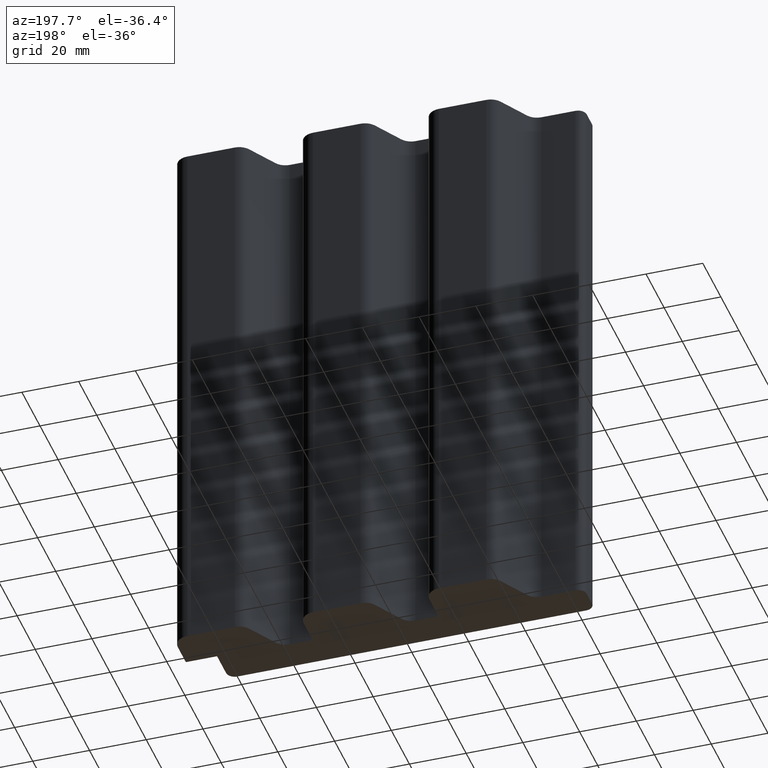
[diagram: clean part render]
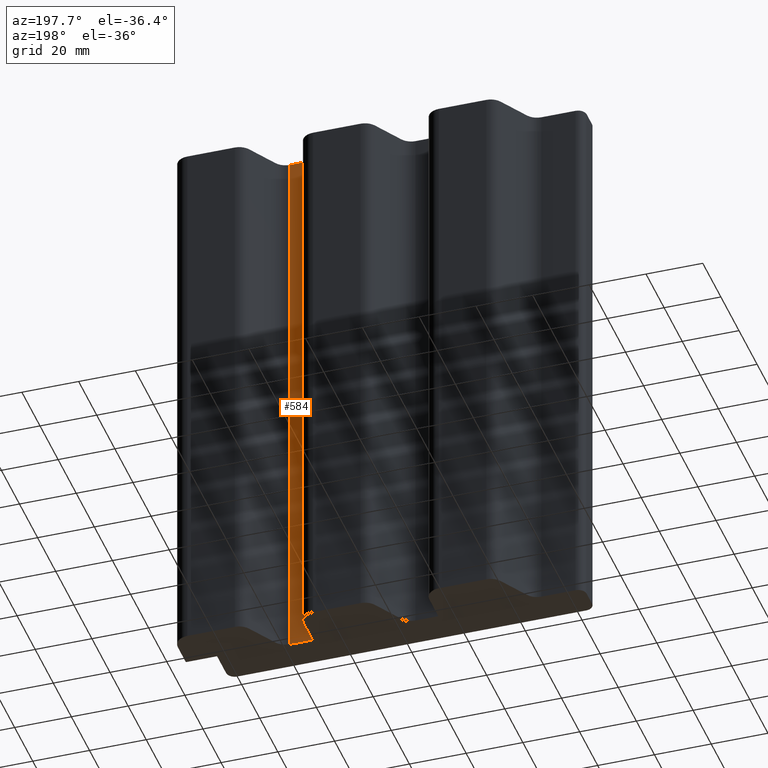
[diagram: same view with one face highlighted and labeled with its STEP entity id]
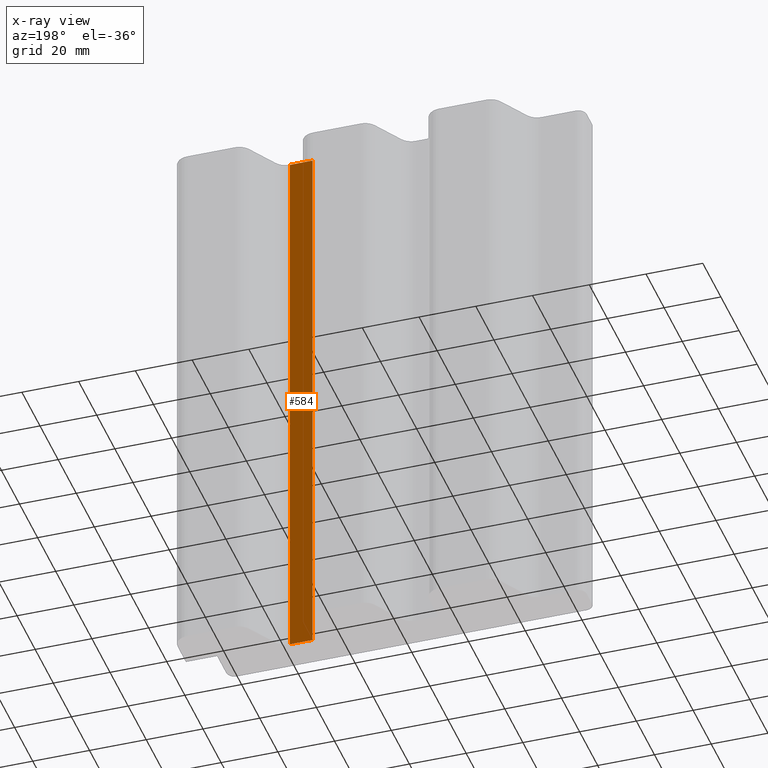
[diagram: x-ray of the same camera — body ghosted, the highlighted face saturated]
A machine part, auxiliary view. The second image highlights one B-rep face of the part: STEP entity #584.
The next image is the same camera in x-ray: the body ghosted, the highlighted face saturated — about 0% of this face is hidden behind the body in this view.
In plain terms, the highlighted planar face has unit normal (0, 1, 0).
Its self-contained STEP definition (entity closure, byte-faithful):
#30=PLANE('',#652);
#60=FACE_OUTER_BOUND('',#90,.T.);
#90=EDGE_LOOP('',(#485,#486,#487,#488));
#93=LINE('',#831,#153);
#150=LINE('',#990,#210);
#151=LINE('',#992,#211);
#152=LINE('',#993,#212);
#153=VECTOR('',#661,10.);
#210=VECTOR('',#816,10.);
#211=VECTOR('',#819,10.);
#212=VECTOR('',#820,10.);
#237=VERTEX_POINT('',#827);
#239=VERTEX_POINT('',#830);
#291=VERTEX_POINT('',#986);
#292=VERTEX_POINT('',#988);
#294=EDGE_CURVE('',#237,#239,#93,.T.);
#374=EDGE_CURVE('',#291,#292,#150,.T.);
#375=EDGE_CURVE('',#237,#291,#151,.T.);
#376=EDGE_CURVE('',#239,#292,#152,.T.);
#485=ORIENTED_EDGE('',*,*,#375,.T.);
#486=ORIENTED_EDGE('',*,*,#374,.T.);
#487=ORIENTED_EDGE('',*,*,#376,.F.);
#488=ORIENTED_EDGE('',*,*,#294,.F.);
#584=ADVANCED_FACE('',(#60),#30,.T.);
#652=AXIS2_PLACEMENT_3D('',#991,#817,#818);
#661=DIRECTION('',(0.,0.,1.));
#816=DIRECTION('',(0.,0.,1.));
#817=DIRECTION('center_axis',(1.7588708267624E-12,1.,0.));
#818=DIRECTION('ref_axis',(-1.,1.7588708267624E-12,0.));
#819=DIRECTION('',(-1.,1.7588708267624E-12,0.));
#820=DIRECTION('',(-1.,1.7588708267624E-12,0.));
#827=CARTESIAN_POINT('',(39.1666669478988,11.9999999995154,0.));
#830=CARTESIAN_POINT('',(39.1666669478988,11.9999999995154,200.));
#831=CARTESIAN_POINT('',(39.1666669478988,11.9999999995154,0.));
#986=CARTESIAN_POINT('',(31.1666669478988,11.9999999995295,0.));
#988=CARTESIAN_POINT('',(31.1666669478988,11.9999999995295,200.));
#990=CARTESIAN_POINT('',(31.1666669478988,11.9999999995295,0.));
#991=CARTESIAN_POINT('Origin',(39.1666669478988,11.9999999995154,0.));
#992=CARTESIAN_POINT('',(39.1666669478988,11.9999999995154,0.));
#993=CARTESIAN_POINT('',(39.1666669478988,11.9999999995154,200.));